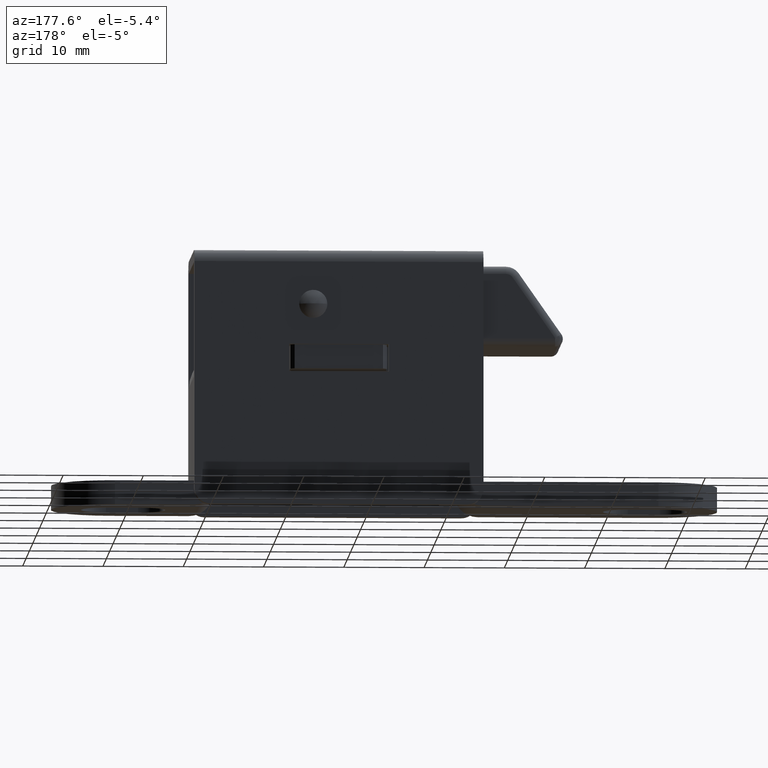
[diagram: clean part render]
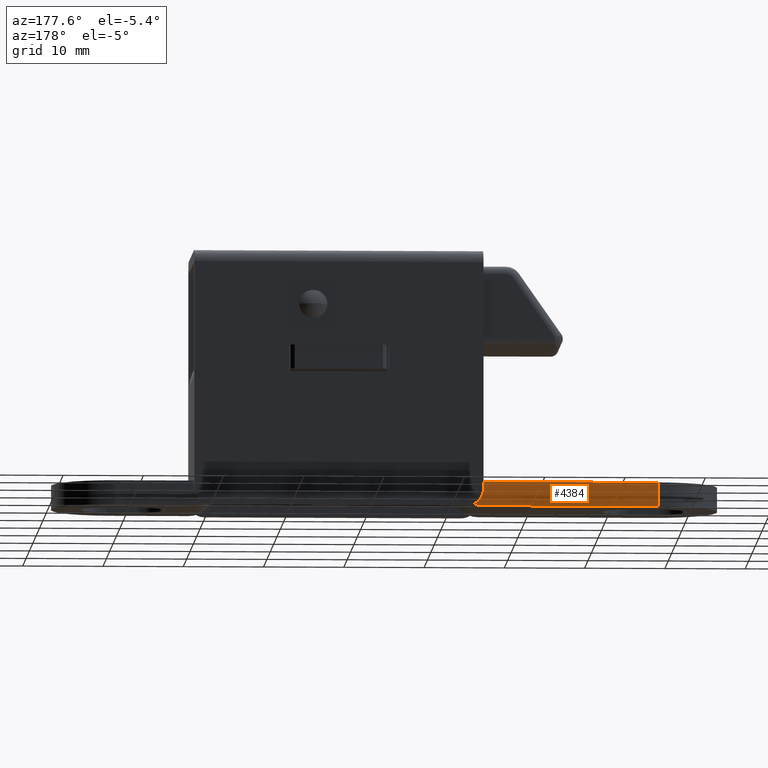
[diagram: same view with one face highlighted and labeled with its STEP entity id]
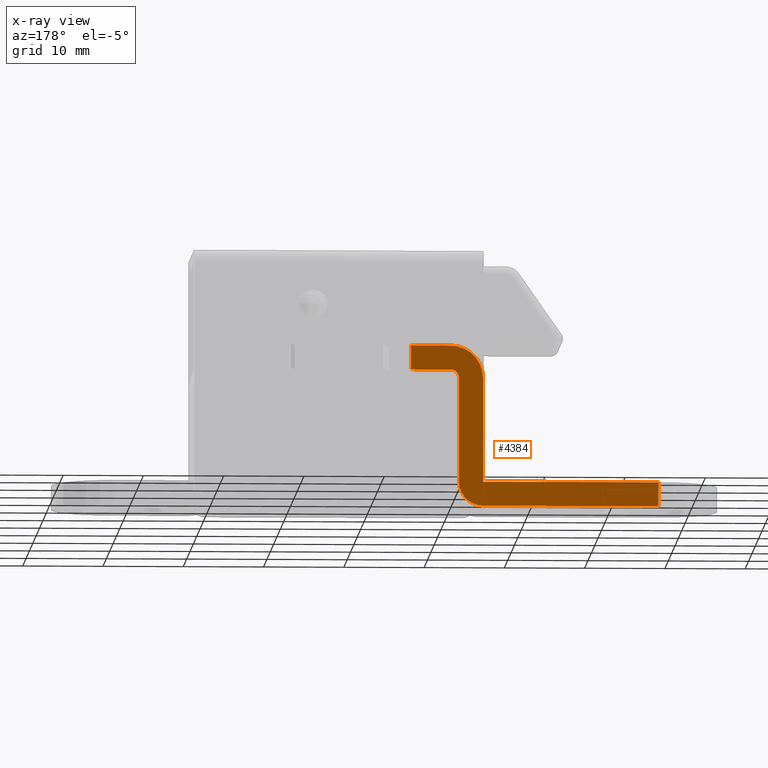
[diagram: x-ray of the same camera — body ghosted, the highlighted face saturated]
A machine part, auxiliary view. The second image highlights one B-rep face of the part: STEP entity #4384.
The next image is the same camera in x-ray: the body ghosted, the highlighted face saturated — about 0% of this face is hidden behind the body in this view.
In plain terms, the highlighted planar face has unit normal (0, 1, 0).
Its self-contained STEP definition (entity closure, byte-faithful):
#16 = EDGE_CURVE ( 'NONE', #1475, #2873, #4039, .T. ) ;
#49 = DIRECTION ( 'NONE',  ( 0.0000000000000000000, -0.0000000000000000000, 1.000000000000000000 ) ) ;
#68 = EDGE_CURVE ( 'NONE', #363, #3215, #2867, .T. ) ;
#238 = VECTOR ( 'NONE', #3294, 1000.000000000000000 ) ;
#306 = VERTEX_POINT ( 'NONE', #5473 ) ;
#338 = DIRECTION ( 'NONE',  ( 1.000000000000000000, -0.0000000000000000000, 0.0000000000000000000 ) ) ;
#363 = VERTEX_POINT ( 'NONE', #1997 ) ;
#422 = CARTESIAN_POINT ( 'NONE',  ( -44.49999999970000200, 7.650000000000000400, -5.000000000000000000 ) ) ;
#428 = ORIENTED_EDGE ( 'NONE', *, *, #5162, .T. ) ;
#430 = ORIENTED_EDGE ( 'NONE', *, *, #1734, .T. ) ;
#663 = VECTOR ( 'NONE', #2322, 1000.000000000000000 ) ;
#736 = VECTOR ( 'NONE', #4813, 1000.000000000000000 ) ;
#767 = AXIS2_PLACEMENT_3D ( 'NONE', #1213, #2107, #3079 ) ;
#780 = ORIENTED_EDGE ( 'NONE', *, *, #3345, .T. ) ;
#783 = CARTESIAN_POINT ( 'NONE',  ( -40.49999999970000200, 7.649999999999934600, 13.00000000000000200 ) ) ;
#1072 = AXIS2_PLACEMENT_3D ( 'NONE', #783, #5692, #3951 ) ;
#1161 = VERTEX_POINT ( 'NONE', #2999 ) ;
#1213 = CARTESIAN_POINT ( 'NONE',  ( -44.49999999970000200, 7.649999999999934600, -9.947598300639999100E-013 ) ) ;
#1318 = ORIENTED_EDGE ( 'NONE', *, *, #1906, .T. ) ;
#1393 = EDGE_CURVE ( 'NONE', #2873, #5151, #5383, .T. ) ;
#1475 = VERTEX_POINT ( 'NONE', #5617 ) ;
#1502 = AXIS2_PLACEMENT_3D ( 'NONE', #4453, #1802, #4895 ) ;
#1547 = EDGE_LOOP ( 'NONE', ( #430, #1823, #2462, #1318, #780, #428, #3365, #4665, #3863, #1760, #3058 ) ) ;
#1591 = DIRECTION ( 'NONE',  ( -0.0000000000000000000, 1.000000000000000000, 0.0000000000000000000 ) ) ;
#1734 = EDGE_CURVE ( 'NONE', #3215, #1475, #2051, .T. ) ;
#1755 = VECTOR ( 'NONE', #3549, 1000.000000000000000 ) ;
#1760 = ORIENTED_EDGE ( 'NONE', *, *, #3147, .T. ) ;
#1802 = DIRECTION ( 'NONE',  ( 0.0000000000000000000, 1.000000000000000000, 0.0000000000000000000 ) ) ;
#1809 = VERTEX_POINT ( 'NONE', #2207 ) ;
#1816 = CARTESIAN_POINT ( 'NONE',  ( -44.49999999970000200, 7.649999999999934600, -3.000000000000497400 ) ) ;
#1823 = ORIENTED_EDGE ( 'NONE', *, *, #16, .T. ) ;
#1855 = VECTOR ( 'NONE', #5485, 1000.000000000000000 ) ;
#1906 = EDGE_CURVE ( 'NONE', #5151, #2085, #2620, .T. ) ;
#1997 = CARTESIAN_POINT ( 'NONE',  ( -40.49999999970000200, 7.649999999999967500, 14.00000000000000000 ) ) ;
#2006 = CARTESIAN_POINT ( 'NONE',  ( -43.29999999969999900, 7.650000000000000400, 14.00000000000000000 ) ) ;
#2051 = LINE ( 'NONE', #4969, #736 ) ;
#2085 = VERTEX_POINT ( 'NONE', #5552 ) ;
#2107 = DIRECTION ( 'NONE',  ( 0.0000000000000000000, 1.000000000000000000, 0.0000000000000000000 ) ) ;
#2207 = CARTESIAN_POINT ( 'NONE',  ( -44.49999999969117700, 7.650000000000000400, 4.913546421588440400E-011 ) ) ;
#2228 = CARTESIAN_POINT ( 'NONE',  ( -35.49999999989999800, 7.650000000000000400, -5.000000000000000000 ) ) ;
#2288 = EDGE_CURVE ( 'NONE', #3999, #5058, #3651, .T. ) ;
#2322 = DIRECTION ( 'NONE',  ( -1.000000000000000000, -0.0000000000000000000, 0.0000000000000000000 ) ) ;
#2427 = PLANE ( 'NONE',  #4230 ) ;
#2462 = ORIENTED_EDGE ( 'NONE', *, *, #1393, .T. ) ;
#2620 = LINE ( 'NONE', #2654, #4800 ) ;
#2654 = CARTESIAN_POINT ( 'NONE',  ( -66.34999999960000100, 7.650000000000000400, -5.000000000000000000 ) ) ;
#2834 = CIRCLE ( 'NONE', #1502, 4.000000000000000000 ) ;
#2844 = CARTESIAN_POINT ( 'NONE',  ( -69.43499999959999500, 7.650000000000000400, 7.364595044911936800E-011 ) ) ;
#2867 = CIRCLE ( 'NONE', #1072, 1.000000000000000900 ) ;
#2873 = VERTEX_POINT ( 'NONE', #1816 ) ;
#2999 = CARTESIAN_POINT ( 'NONE',  ( -35.49999999989921700, 7.650000000000000400, 13.99999999999999800 ) ) ;
#3058 = ORIENTED_EDGE ( 'NONE', *, *, #68, .T. ) ;
#3079 = DIRECTION ( 'NONE',  ( 0.0000000000000000000, 0.0000000000000000000, -1.000000000000000000 ) ) ;
#3147 = EDGE_CURVE ( 'NONE', #1161, #363, #5370, .T. ) ;
#3215 = VERTEX_POINT ( 'NONE', #4976 ) ;
#3294 = DIRECTION ( 'NONE',  ( 1.000000000000000000, 0.0000000000000000000, 0.0000000000000000000 ) ) ;
#3345 = EDGE_CURVE ( 'NONE', #2085, #1809, #4946, .T. ) ;
#3365 = ORIENTED_EDGE ( 'NONE', *, *, #3597, .T. ) ;
#3518 = VECTOR ( 'NONE', #338, 1000.000000000000000 ) ;
#3549 = DIRECTION ( 'NONE',  ( 0.0000000000000000000, -0.0000000000000000000, 1.000000000000000000 ) ) ;
#3578 = EDGE_CURVE ( 'NONE', #5058, #1161, #4015, .T. ) ;
#3597 = EDGE_CURVE ( 'NONE', #306, #3999, #2834, .T. ) ;
#3651 = LINE ( 'NONE', #3905, #3518 ) ;
#3840 = CARTESIAN_POINT ( 'NONE',  ( -35.49999999989921700, 7.649999999999999500, 17.00000000000000000 ) ) ;
#3863 = ORIENTED_EDGE ( 'NONE', *, *, #3578, .T. ) ;
#3905 = CARTESIAN_POINT ( 'NONE',  ( -9.699999999679999300, 7.649999999999998600, 17.00000000000000000 ) ) ;
#3951 = DIRECTION ( 'NONE',  ( 0.0000000000000000000, 0.0000000000000000000, -1.000000000000000000 ) ) ;
#3999 = VERTEX_POINT ( 'NONE', #4707 ) ;
#4015 = LINE ( 'NONE', #2228, #5156 ) ;
#4039 = CIRCLE ( 'NONE', #767, 3.000000000000000000 ) ;
#4230 = AXIS2_PLACEMENT_3D ( 'NONE', #4252, #1591, #4683 ) ;
#4252 = CARTESIAN_POINT ( 'NONE',  ( -69.43499999959999500, 7.650000000000000400, -5.000000000000000000 ) ) ;
#4384 = ADVANCED_FACE ( 'NONE', ( #5513 ), #2427, .T. ) ;
#4453 = CARTESIAN_POINT ( 'NONE',  ( -40.49999999970000200, 7.649999999999934600, 13.00000000000000200 ) ) ;
#4665 = ORIENTED_EDGE ( 'NONE', *, *, #2288, .T. ) ;
#4683 = DIRECTION ( 'NONE',  ( 0.0000000000000000000, -0.0000000000000000000, 1.000000000000000000 ) ) ;
#4707 = CARTESIAN_POINT ( 'NONE',  ( -40.49999999970000200, 7.649999999999966600, 17.00000000000000000 ) ) ;
#4800 = VECTOR ( 'NONE', #49, 1000.000000000000000 ) ;
#4813 = DIRECTION ( 'NONE',  ( -0.0000000000000000000, 0.0000000000000000000, -1.000000000000000000 ) ) ;
#4870 = DIRECTION ( 'NONE',  ( -0.0000000000000000000, 0.0000000000000000000, -1.000000000000000000 ) ) ;
#4895 = DIRECTION ( 'NONE',  ( 0.0000000000000000000, 0.0000000000000000000, -1.000000000000000000 ) ) ;
#4946 = LINE ( 'NONE', #2844, #238 ) ;
#4969 = CARTESIAN_POINT ( 'NONE',  ( -41.49999999970000900, 7.650000000000000400, -5.000000000000000000 ) ) ;
#4976 = CARTESIAN_POINT ( 'NONE',  ( -41.49999999970000900, 7.649999999999951500, 13.00000000000000200 ) ) ;
#5034 = CARTESIAN_POINT ( 'NONE',  ( -69.43499999959999500, 7.650000000000000400, -3.000000000000000000 ) ) ;
#5058 = VERTEX_POINT ( 'NONE', #3840 ) ;
#5142 = LINE ( 'NONE', #422, #1755 ) ;
#5151 = VERTEX_POINT ( 'NONE', #5263 ) ;
#5156 = VECTOR ( 'NONE', #4870, 1000.000000000000000 ) ;
#5162 = EDGE_CURVE ( 'NONE', #1809, #306, #5142, .T. ) ;
#5263 = CARTESIAN_POINT ( 'NONE',  ( -66.34999999964740900, 7.650000000000000400, -3.000000000000000000 ) ) ;
#5370 = LINE ( 'NONE', #2006, #663 ) ;
#5383 = LINE ( 'NONE', #5034, #1855 ) ;
#5473 = CARTESIAN_POINT ( 'NONE',  ( -44.49999999970000200, 7.649999999999951500, 13.00000000000000200 ) ) ;
#5485 = DIRECTION ( 'NONE',  ( -1.000000000000000000, -0.0000000000000000000, -0.0000000000000000000 ) ) ;
#5513 = FACE_OUTER_BOUND ( 'NONE', #1547, .T. ) ;
#5552 = CARTESIAN_POINT ( 'NONE',  ( -66.34999999965000900, 7.650000000000000400, 7.364597335920968900E-011 ) ) ;
#5617 = CARTESIAN_POINT ( 'NONE',  ( -41.49999999970000200, 7.649999999999951500, -9.952151490593335800E-013 ) ) ;
#5692 = DIRECTION ( 'NONE',  ( -0.0000000000000000000, -1.000000000000000000, -0.0000000000000000000 ) ) ;